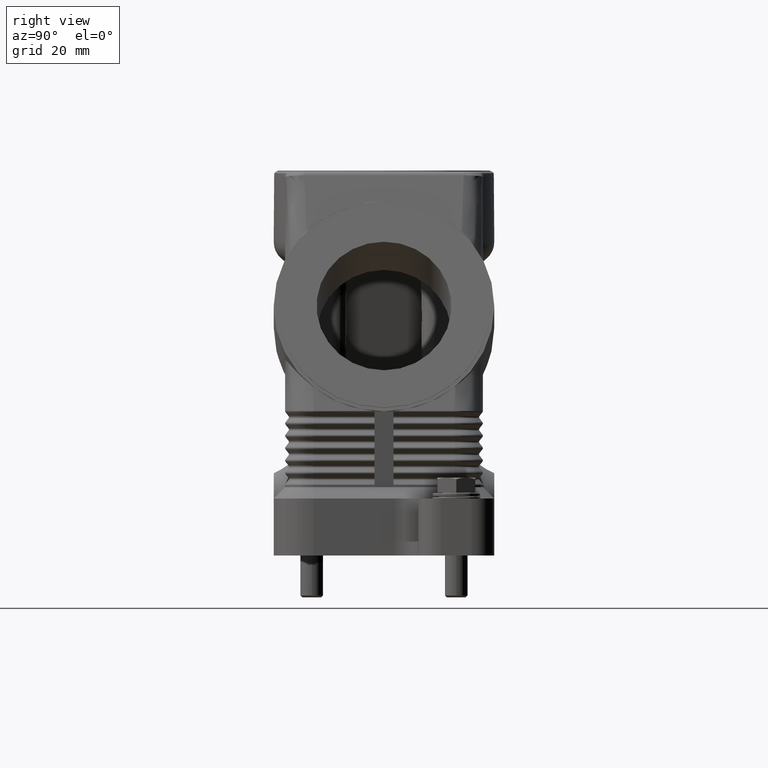
[diagram: clean part render]
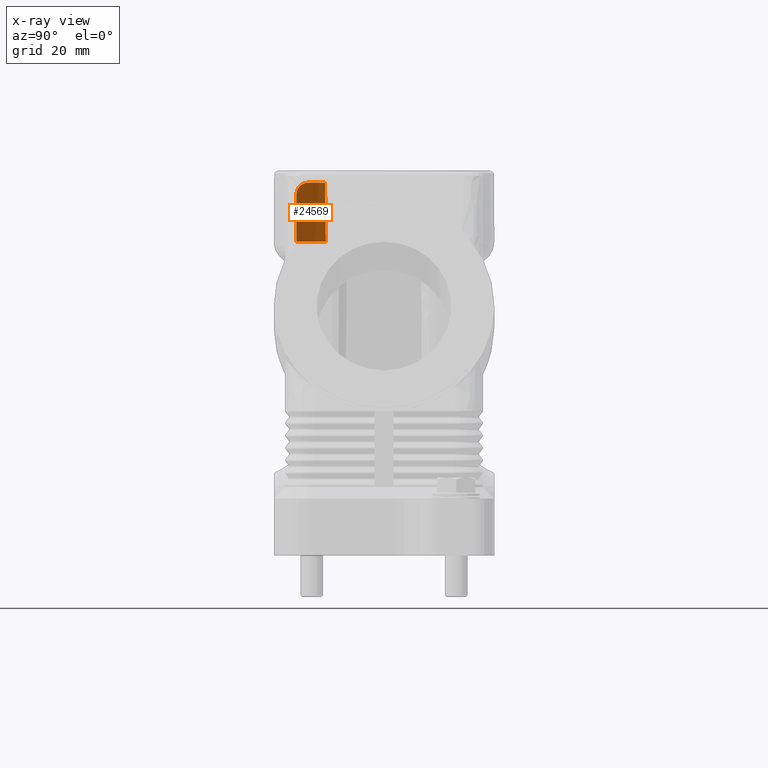
[diagram: x-ray — body ghosted, one internal face saturated and labeled with its STEP entity id]
A machine part, right view, then the same camera in x-ray: the body is ghosted and one INTERNAL B-rep face — a face not visible from any outside direction — is saturated and labeled: STEP entity #24569.
In plain terms, the highlighted cylindrical surface (partial cylindrical patch) has radius 29 mm, axis along (-0, 0, -1).
Its self-contained STEP definition (entity closure, byte-faithful):
#4355=CARTESIAN_POINT('',(-18.752258164220237,-22.121320343560207,97.121320343559077));
#4356=VERTEX_POINT('',#4355);
#4372=CARTESIAN_POINT('',(-21.000000000000007,-20.0,98.0));
#4373=VERTEX_POINT('',#4372);
#4380=CARTESIAN_POINT('',(-18.752258164220237,-22.121320343560207,97.121320343559077));
#4381=CARTESIAN_POINT('',(-19.057442011412132,-21.862615790612566,97.380024896506853));
#4382=CARTESIAN_POINT('',(-19.401853375560140,-21.559160210015349,97.587860297873803));
#4383=CARTESIAN_POINT('',(-20.176896669138642,-20.838159441794989,97.912915542208907));
#4384=CARTESIAN_POINT('',(-20.610413398018984,-20.409065932080068,98.0));
#4385=CARTESIAN_POINT('',(-21.000000000000007,-20.0,98.0));
#4386=B_SPLINE_CURVE_WITH_KNOTS('',3,(#4380,#4381,#4382,#4383,#4384,#4385),.UNSPECIFIED.,.F.,.U.,(4,2,4),(2.442227522535907,2.582217814281180,2.751687986142924),.UNSPECIFIED.);
#4387=EDGE_CURVE('',#4356,#4373,#4386,.T.);
#24156=CARTESIAN_POINT('',(-24.634755820751511,-15.301268106008399,82.500000000000014));
#24157=VERTEX_POINT('',#24156);
#24173=CARTESIAN_POINT('',(-24.499489369994745,-15.516926906108530,98.0));
#24174=VERTEX_POINT('',#24173);
#24175=CARTESIAN_POINT('',(-24.499489369994745,-15.516926906108530,98.0));
#24176=CARTESIAN_POINT('',(-24.567595877592183,-15.409394359939144,90.195767229388778));
#24177=CARTESIAN_POINT('',(-24.634755820751511,-15.301268106008399,82.500000000000014));
#24185=(BOUNDED_CURVE()B_SPLINE_CURVE(2,(#24175,#24176,#24177),.UNSPECIFIED.,.F.,.U.)B_SPLINE_CURVE_WITH_KNOTS((3,3),(0.000344004541958,1.550554622266747),.UNSPECIFIED.)CURVE()GEOMETRIC_REPRESENTATION_ITEM()RATIONAL_B_SPLINE_CURVE((0.999999995724717,0.999990364865337,0.999999998534835))REPRESENTATION_ITEM(''));
#24186=EDGE_CURVE('',#24174,#24157,#24185,.T.);
#24523=CARTESIAN_POINT('',(3.777851E-018,0.0,91.750000000000000));
#24524=DIRECTION('',(-4.117549E-020,0.0,-1.0));
#24525=DIRECTION('',(-1.0,0.0,0.0));
#24526=AXIS2_PLACEMENT_3D('',#24523,#24524,#24525);
#24527=CYLINDRICAL_SURFACE('',#24526,29.000000000000004);
#24528=ORIENTED_EDGE('',*,*,#24186,.T.);
#24529=CARTESIAN_POINT('',(-17.663521732655703,-23.0,82.500000000000014));
#24530=VERTEX_POINT('',#24529);
#24531=CARTESIAN_POINT('',(3.396978E-018,0.0,82.500000000000014));
#24532=DIRECTION('',(0.0,0.0,-1.0));
#24533=DIRECTION('',(-1.0,0.0,0.0));
#24534=AXIS2_PLACEMENT_3D('',#24531,#24532,#24533);
#24535=CIRCLE('',#24534,29.000000000000004);
#24536=EDGE_CURVE('',#24530,#24157,#24535,.T.);
#24537=ORIENTED_EDGE('',*,*,#24536,.F.);
#24538=CARTESIAN_POINT('',(-17.663521732655703,-23.0,95.0));
#24539=VERTEX_POINT('',#24538);
#24540=CARTESIAN_POINT('',(-17.663521732655703,-23.0,95.0));
#24541=DIRECTION('',(0.0,0.0,-1.0));
#24542=VECTOR('',#24541,12.499999999999986);
#24543=LINE('',#24540,#24542);
#24544=EDGE_CURVE('',#24539,#24530,#24543,.T.);
#24545=ORIENTED_EDGE('',*,*,#24544,.F.);
#24546=CARTESIAN_POINT('',(-17.663521732655703,-23.0,95.0));
#24547=CARTESIAN_POINT('',(-17.663521732655703,-23.0,95.190392024979516));
#24548=CARTESIAN_POINT('',(-17.687511702909418,-22.981629466885600,95.381109419720701));
#24549=CARTESIAN_POINT('',(-17.779285352329442,-22.910704387937034,95.750438963385847));
#24550=CARTESIAN_POINT('',(-17.846975752865806,-22.858188803069691,95.929081765260548));
#24551=CARTESIAN_POINT('',(-18.098049862170129,-22.660669630749041,96.431985340113783));
#24552=CARTESIAN_POINT('',(-18.330710477460698,-22.473941931507866,96.723285743723721));
#24553=CARTESIAN_POINT('',(-18.625468103802945,-22.228318250030945,97.010123947319343));
#24554=CARTESIAN_POINT('',(-18.687990970284602,-22.175799687173249,97.066840999946010));
#24555=CARTESIAN_POINT('',(-18.752258164220237,-22.121320343560207,97.121320343559077));
#24556=B_SPLINE_CURVE_WITH_KNOTS('',3,(#24546,#24547,#24548,#24549,#24550,#24551,#24552,#24553,#24554,#24555),.UNSPECIFIED.,.F.,.U.,(4,2,2,2,4),(2.184277212444016,2.241394819937871,2.298512427431726,2.412747642419437,2.442227522535907),.UNSPECIFIED.);
#24557=EDGE_CURVE('',#24539,#4356,#24556,.T.);
#24558=ORIENTED_EDGE('',*,*,#24557,.T.);
#24559=ORIENTED_EDGE('',*,*,#4387,.T.);
#24560=CARTESIAN_POINT('',(4.035198E-018,0.0,98.0));
#24561=DIRECTION('',(0.0,0.0,1.0));
#24562=DIRECTION('',(-1.0,0.0,0.0));
#24563=AXIS2_PLACEMENT_3D('',#24560,#24561,#24562);
#24564=CIRCLE('',#24563,29.000000000000004);
#24565=EDGE_CURVE('',#24174,#4373,#24564,.T.);
#24566=ORIENTED_EDGE('',*,*,#24565,.F.);
#24567=EDGE_LOOP('',(#24528,#24537,#24545,#24558,#24559,#24566));
#24568=FACE_OUTER_BOUND('',#24567,.T.);
#24569=ADVANCED_FACE('',(#24568),#24527,.T.);